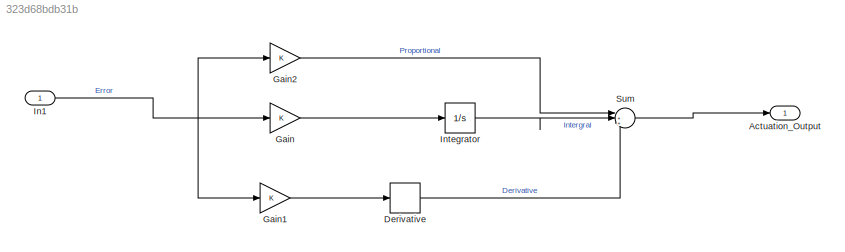
MODEL slx_323d68bdb31b
KIND model
CONFIG AbsTol = auto
CONFIG EnableMultiTasking = off
CONFIG FixedStep = auto
CONFIG MaxStep = auto
CONFIG MinStep = auto
CONFIG RelTol = 1e-3
CONFIG SampleTimeConstraint = Unconstrained
CONFIG SolverName = VariableStepAuto
CONFIG StartTime = 0.0
CONFIG StopTime = 10.0
BLOCK [Outport] Actuation_Output
BLOCK [Derivative] Derivative
BLOCK [Gain] Gain
BLOCK [Gain] Gain1
BLOCK [Gain] Gain2
BLOCK [Inport] In1
BLOCK [Integrator] Integrator
BLOCK [Sum] Sum
  Inputs = |+++
LINE Derivative:1 -> Sum:3
LINE Gain1:1 -> Derivative:1
LINE Gain2:1 -> Sum:1
LINE Gain:1 -> Integrator:1
NET In1:1 -> Gain1:1, Gain2:1, Gain:1
LINE Integrator:1 -> Sum:2
LINE Sum:1 -> Actuation_Output:1
note: NET lines group one-source signal fan-out (src -> all destinations, sorted); 1:1 wires keep LINE
